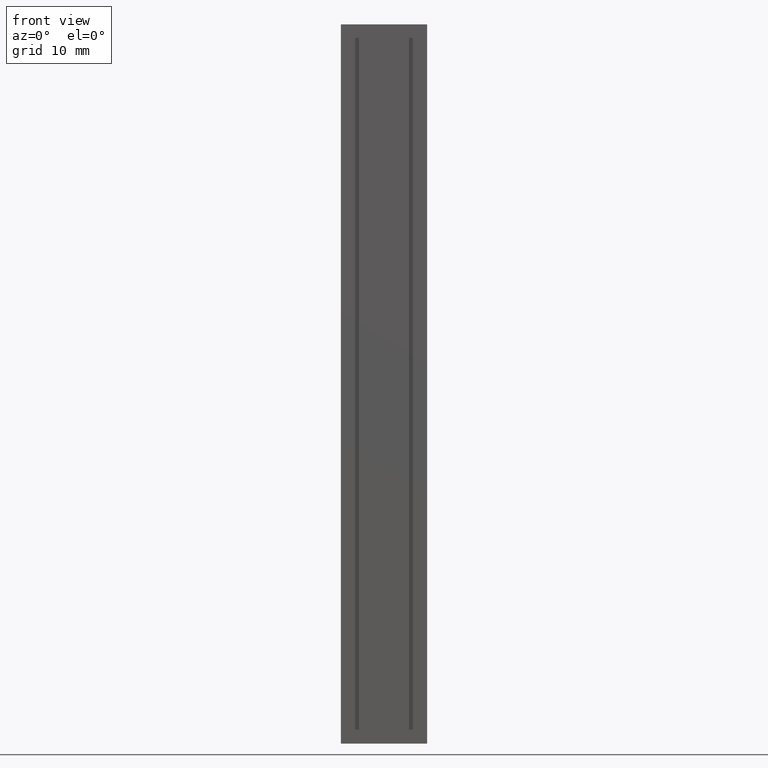
[diagram: clean part render]
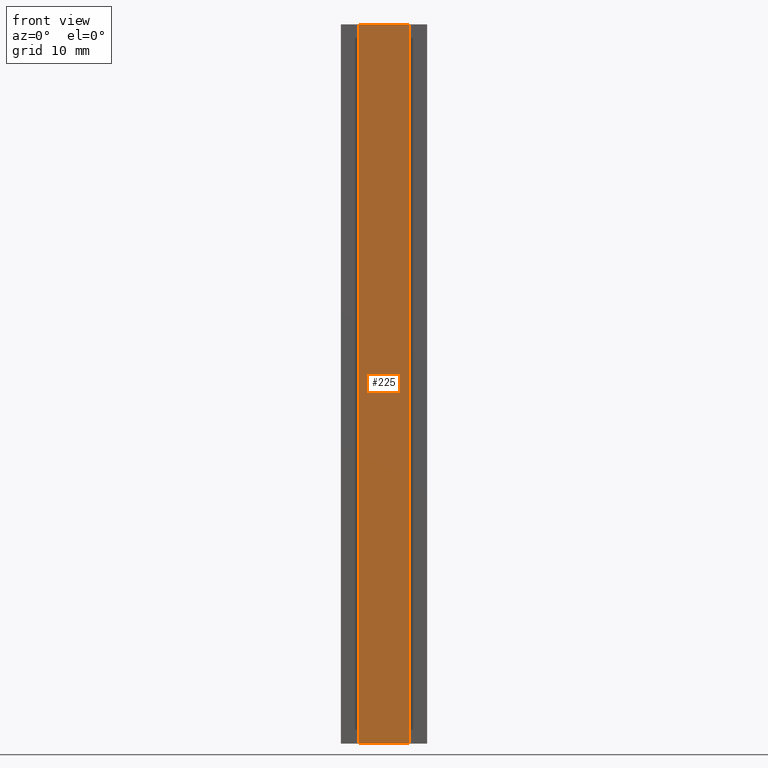
[diagram: same view with one face highlighted and labeled with its STEP entity id]
A machine part, front view. The second image highlights one B-rep face of the part: STEP entity #225.
In plain terms, the highlighted planar face has unit normal (0, -1, 0).
Its self-contained STEP definition (entity closure, byte-faithful):
#119=CARTESIAN_POINT('',(3.5,-14.000000000000004,-50.0));
#120=VERTEX_POINT('',#119);
#127=CARTESIAN_POINT('',(-3.5,-14.000000000000004,-50.0));
#128=VERTEX_POINT('',#127);
#129=CARTESIAN_POINT('',(-3.5,-14.000000000000004,-50.0));
#130=DIRECTION('',(1.0,0.0,0.0));
#131=VECTOR('',#130,7.000000000000001);
#132=LINE('',#129,#131);
#133=EDGE_CURVE('',#128,#120,#132,.T.);
#178=CARTESIAN_POINT('',(3.5,-14.000000000000004,50.0));
#179=VERTEX_POINT('',#178);
#186=CARTESIAN_POINT('',(3.5,-14.000000000000004,50.0));
#187=DIRECTION('',(0.0,0.0,-1.0));
#188=VECTOR('',#187,100.0);
#189=LINE('',#186,#188);
#190=EDGE_CURVE('',#179,#120,#189,.T.);
#202=CARTESIAN_POINT('',(3.5,-14.000000000000004,0.0));
#203=DIRECTION('',(0.0,-1.0,0.0));
#204=DIRECTION('',(0.0,0.0,-1.0));
#205=AXIS2_PLACEMENT_3D('',#202,#203,#204);
#206=PLANE('',#205);
#207=CARTESIAN_POINT('',(-3.5,-14.000000000000004,50.0));
#208=VERTEX_POINT('',#207);
#209=CARTESIAN_POINT('',(3.5,-14.000000000000004,50.0));
#210=DIRECTION('',(-1.0,0.0,0.0));
#211=VECTOR('',#210,7.000000000000001);
#212=LINE('',#209,#211);
#213=EDGE_CURVE('',#179,#208,#212,.T.);
#214=ORIENTED_EDGE('',*,*,#213,.T.);
#215=CARTESIAN_POINT('',(-3.5,-14.000000000000004,50.0));
#216=DIRECTION('',(0.0,0.0,-1.0));
#217=VECTOR('',#216,100.0);
#218=LINE('',#215,#217);
#219=EDGE_CURVE('',#208,#128,#218,.T.);
#220=ORIENTED_EDGE('',*,*,#219,.T.);
#221=ORIENTED_EDGE('',*,*,#133,.T.);
#222=ORIENTED_EDGE('',*,*,#190,.F.);
#223=EDGE_LOOP('',(#214,#220,#221,#222));
#224=FACE_OUTER_BOUND('',#223,.T.);
#225=ADVANCED_FACE('',(#224),#206,.T.);